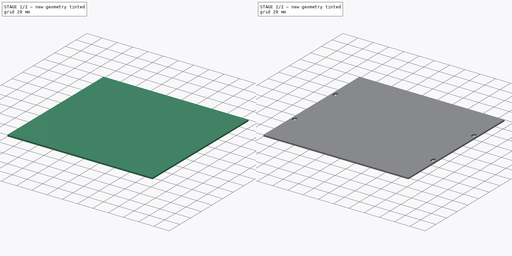
[diagram: build sequence overview — one tinted view per stage of 2, left to right]
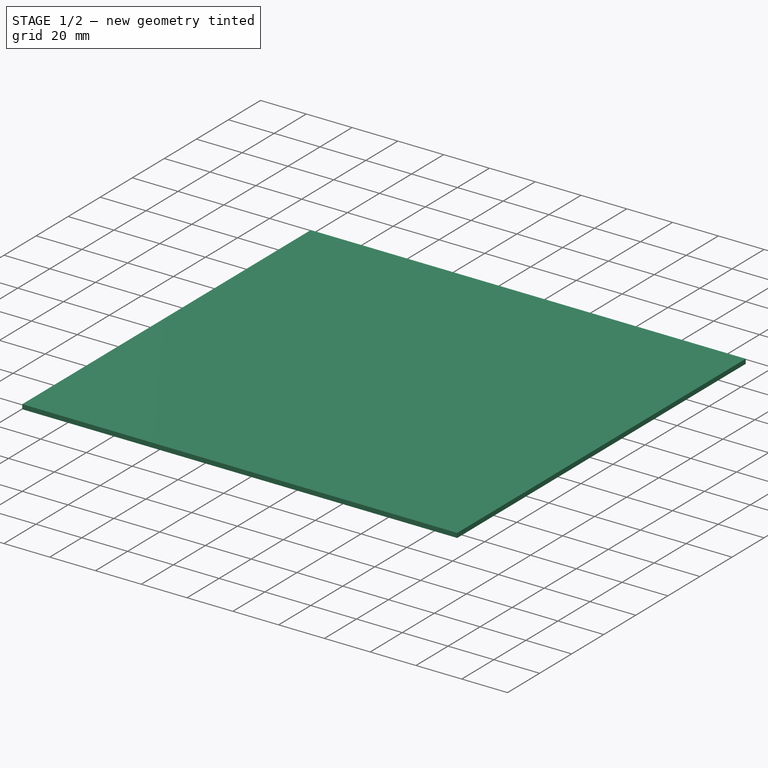
[diagram: stage 1 of 2 — iso view after this stage's code; geometry added in this stage tinted green]
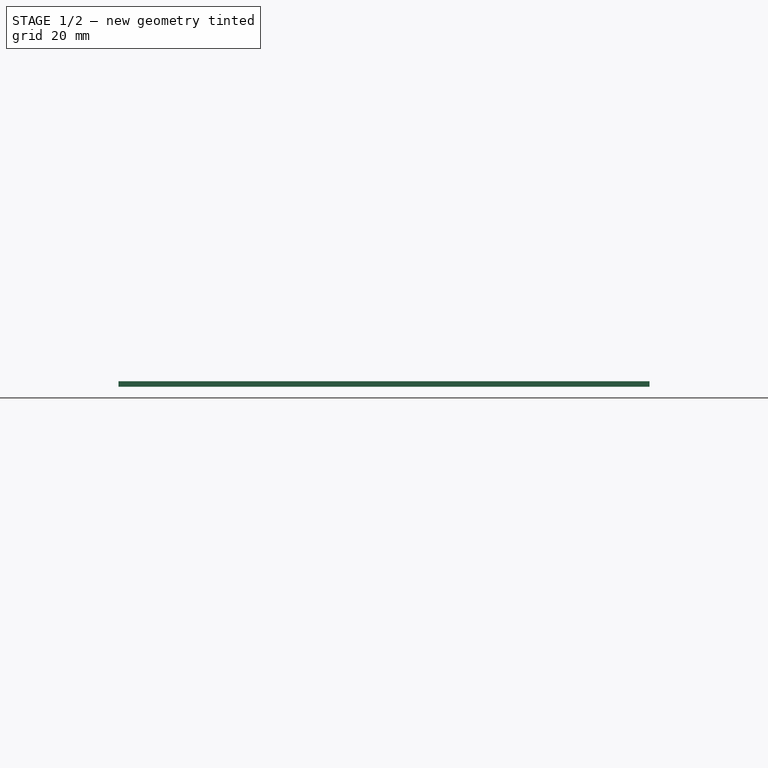
[diagram: stage 1 of 2 — front view after this stage's code; geometry added in this stage tinted green]
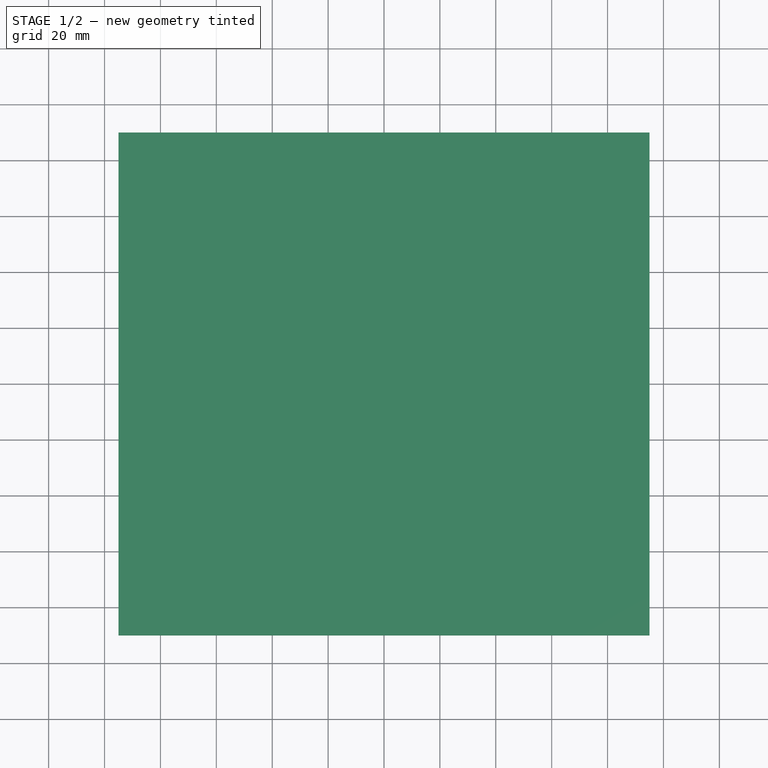
[diagram: stage 1 of 2 — top view after this stage's code; geometry added in this stage tinted green]
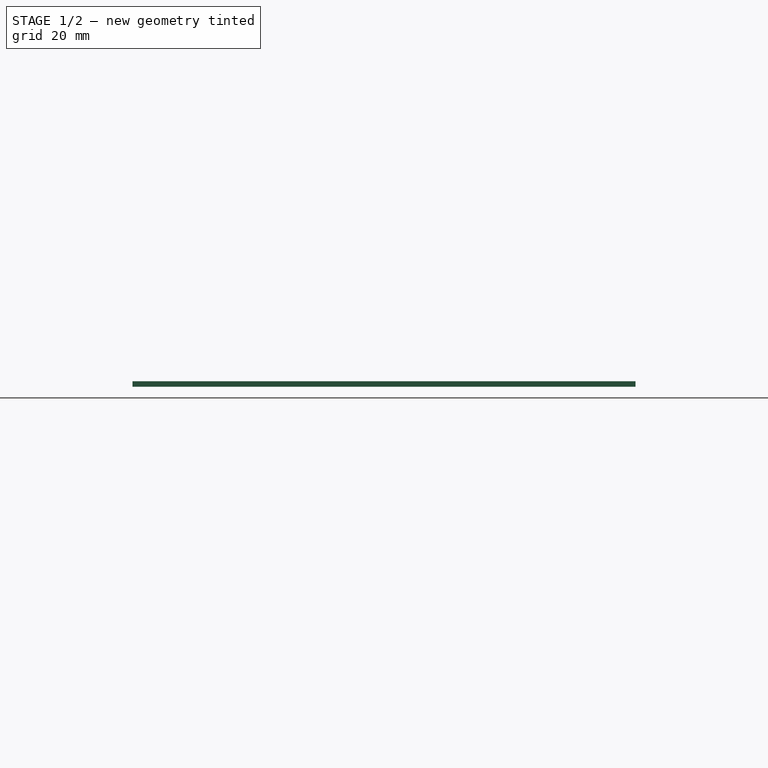
[diagram: stage 1 of 2 — right view after this stage's code; geometry added in this stage tinted green]
FCSTD DOCUMENT  (FreeCAD 0.19R)
Label: tapa
License: All rights reserved
LicenseURL: http://en.wikipedia.org/wiki/All_rights_reserved
objects: Sketcher::SketchObject×2, PartDesign::Pad×1, PartDesign::Pocket×1, PartDesign::Body×1
note: 7 computed .brp shape members not serialized (recipe doc carries the construction recipe); baked Part::Feature solids carry a one-line shape summary decoded from their .brp

FEATURE [Sketcher::SketchObject] Sketch
  FullyConstrained = true
  MapMode = 5
  Support = -> [XY_Plane]
  sketch-geometry (6):
    g0: LineSegment StartX=-95 StartY=-90 StartZ=0 EndX=95 EndY=-90 EndZ=0
    g1: LineSegment StartX=95 StartY=-90 StartZ=0 EndX=95 EndY=90 EndZ=0
    g2: LineSegment StartX=95 StartY=90 StartZ=0 EndX=-95 EndY=90 EndZ=0
    g3: LineSegment StartX=-95 StartY=90 StartZ=0 EndX=-95 EndY=-90 EndZ=0
    g4: LineSegment StartX=0 StartY=0 StartZ=0 EndX=-95 EndY=-90 EndZ=0
    g5: LineSegment StartX=0 StartY=0 StartZ=0 EndX=95 EndY=90 EndZ=0
  constraints (16):
    c: Coincident(g0,g1)
    c: Coincident(g1,g2)
    c: Coincident(g2,g3)
    c: Coincident(g3,g0)
    c: Horizontal(g0)
    c: Horizontal(g2)
    c: Vertical(g1)
    c: Vertical(g3)
    c: Coincident(g4,g-1)
    c: Coincident(g4,g0)
    c: Coincident(g5,g-1)
    c: Coincident(g5,g1)
    c: Equal(g5,g4)
    c: Parallel(g4,g5)
    c: DistanceY(g3,g3) = 180
    c: DistanceX(g0,g0) = 190
FEATURE [PartDesign::Pad] Pad
  Direction = (1,1,1)
  Length = 2
  Length2 = 100
  Profile = -> Sketch
  Refine = true
  Type = 0
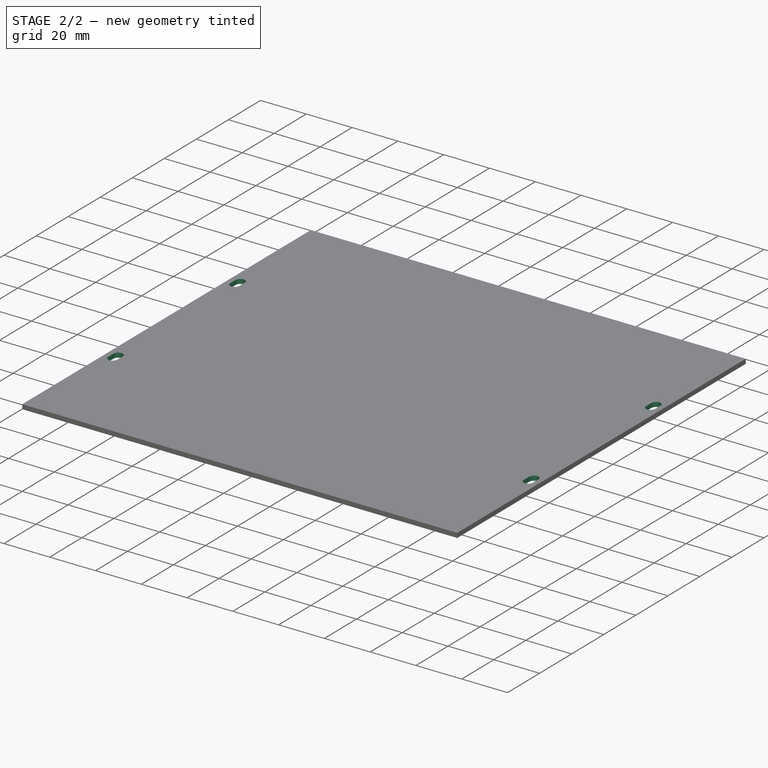
[diagram: stage 2 of 2 — iso view after this stage's code; geometry added in this stage tinted green]
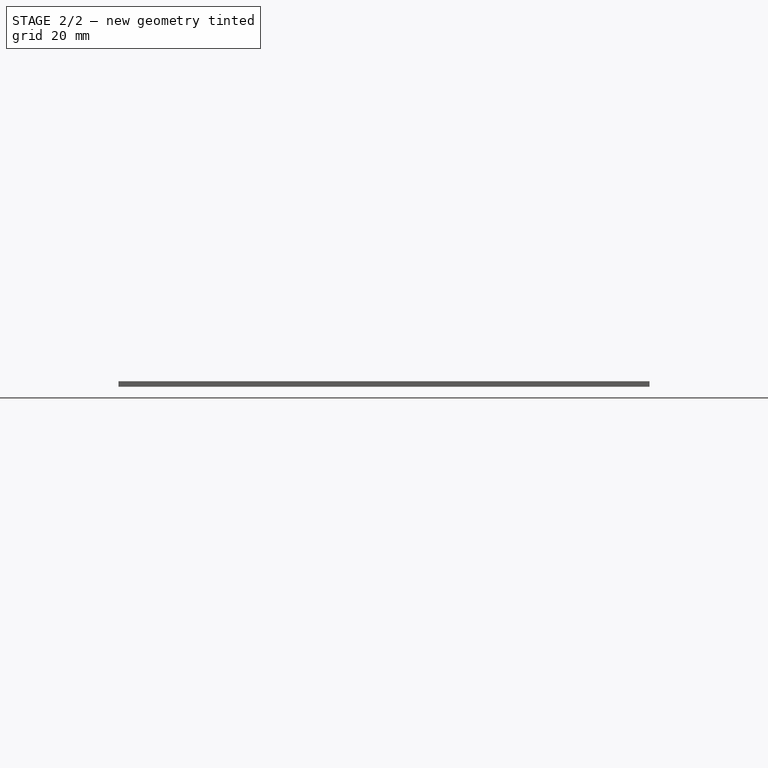
[diagram: stage 2 of 2 — front view after this stage's code; geometry added in this stage tinted green]
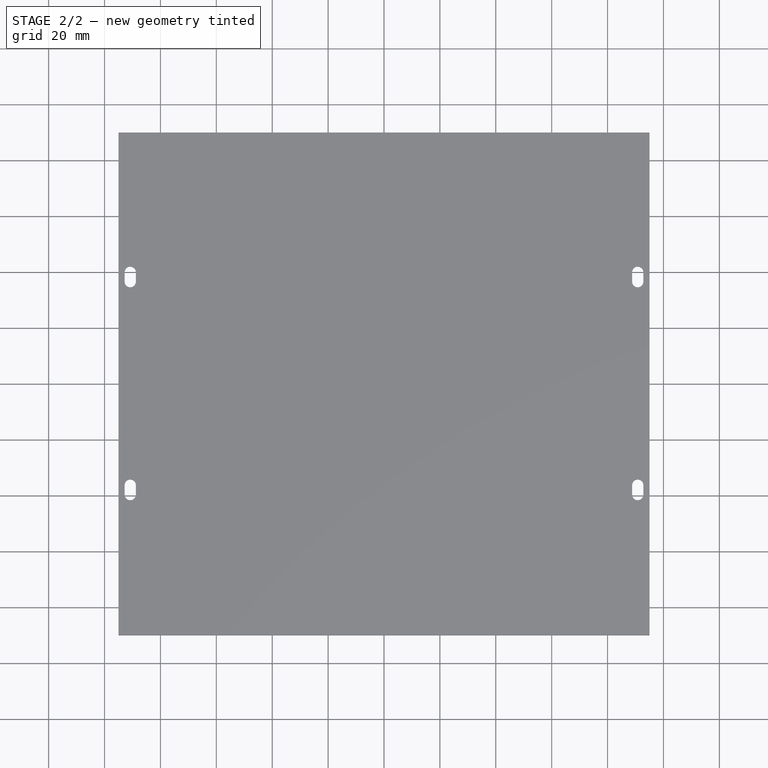
[diagram: stage 2 of 2 — top view after this stage's code; geometry added in this stage tinted green]
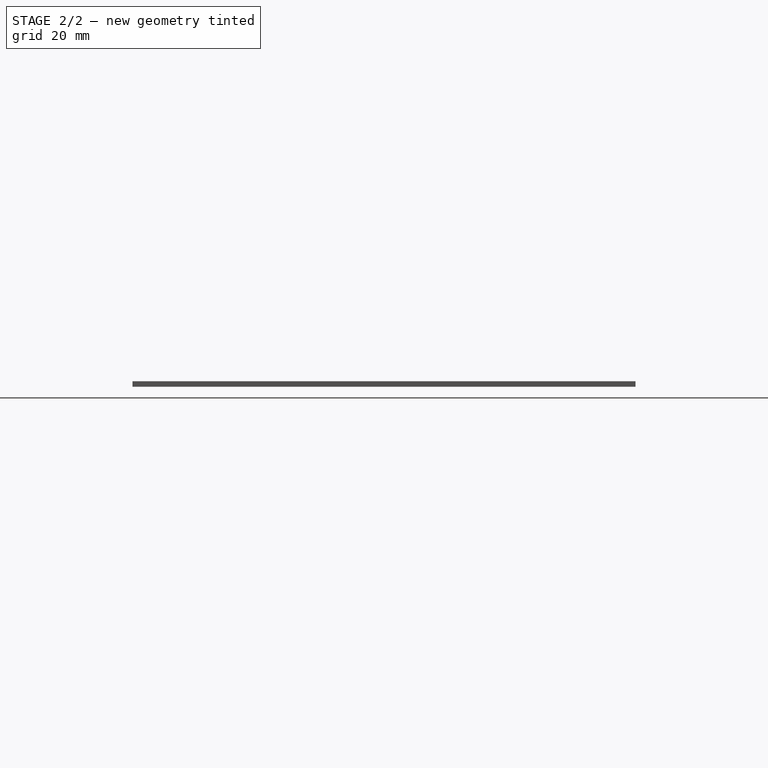
[diagram: stage 2 of 2 — right view after this stage's code; geometry added in this stage tinted green]
FEATURE [Sketcher::SketchObject] Sketch001
  ExternalGeometry = -> [Pad]
  FullyConstrained = false
  MapMode = 5
  Placement = pos=(0,0,2) rot=(0,0,1;0rad)
  Support = -> [Pad]
  sketch-geometry (28):
    g0: ArcOfCircle CenterX=-90.8 CenterY=40 CenterZ=0 NormalX=0 NormalY=0 NormalZ=1 AngleXU=0 Radius=2 StartAngle=1e-16 EndAngle=3.14159
    g1: ArcOfCircle CenterX=-90.8 CenterY=36.6 CenterZ=0 NormalX=0 NormalY=0 NormalZ=1 AngleXU=0 Radius=2 StartAngle=3.14159 EndAngle=6.28319
    g2: LineSegment StartX=-92.8 StartY=40 StartZ=0 EndX=-92.8 EndY=36.6 EndZ=0
    g3: LineSegment StartX=-88.8 StartY=40 StartZ=0 EndX=-88.8 EndY=36.6 EndZ=0
    g4: ArcOfCircle CenterX=90.8 CenterY=40 CenterZ=0 NormalX=0 NormalY=0 NormalZ=1 AngleXU=0 Radius=2 StartAngle=0 EndAngle=3.14159
    g5: ArcOfCircle CenterX=90.8 CenterY=36.6 CenterZ=0 NormalX=0 NormalY=0 NormalZ=1 AngleXU=0 Radius=2 StartAngle=3.14159 EndAngle=6.28319
    g6: LineSegment StartX=88.8 StartY=40 StartZ=0 EndX=88.8 EndY=36.6 EndZ=0
    g7: LineSegment StartX=92.8 StartY=40 StartZ=0 EndX=92.8 EndY=36.6 EndZ=0
    g8: ArcOfCircle CenterX=-90.8 CenterY=-36.2 CenterZ=0 NormalX=0 NormalY=0 NormalZ=1 AngleXU=0 Radius=2 StartAngle=-2.7e-15 EndAngle=3.14159
    g9: ArcOfCircle CenterX=-90.8 CenterY=-39.6 CenterZ=0 NormalX=0 NormalY=0 NormalZ=1 AngleXU=0 Radius=2 StartAngle=3.14159 EndAngle=6.28319
    g10: LineSegment StartX=-92.8 StartY=-36.2 StartZ=0 EndX=-92.8 EndY=-39.6 EndZ=0
    g11: LineSegment StartX=-88.8 StartY=-36.2 StartZ=0 EndX=-88.8 EndY=-39.6 EndZ=0
    g12: ArcOfCircle CenterX=90.8 CenterY=-36.2 CenterZ=0 NormalX=0 NormalY=0 NormalZ=1 AngleXU=0 Radius=2 StartAngle=-3.6e-15 EndAngle=3.14159
    g13: ArcOfCircle CenterX=90.8 CenterY=-39.6 CenterZ=0 NormalX=0 NormalY=0 NormalZ=1 AngleXU=0 Radius=2 StartAngle=3.14159 EndAngle=6.28319
    g14: LineSegment StartX=88.8 StartY=-36.2 StartZ=0 EndX=88.8 EndY=-39.6 EndZ=0
    g15: LineSegment StartX=92.8 StartY=-36.2 StartZ=0 EndX=92.8 EndY=-39.6 EndZ=0
    g16: LineSegment StartX=-92.8 StartY=-79.4646 StartZ=0 EndX=-88.8 EndY=-79.4646 EndZ=0
    g17: LineSegment StartX=88.8 StartY=-64.9414 StartZ=0 EndX=92.8 EndY=-64.9414 EndZ=0
    g18: LineSegment StartX=88.8 StartY=75.9791 StartZ=0 EndX=92.8 EndY=75.9791 EndZ=0
    g19: LineSegment StartX=-92.8 StartY=107.517 StartZ=0 EndX=-88.8 EndY=107.517 EndZ=0
    g20: LineSegment StartX=-90.8 StartY=40 StartZ=0 EndX=-90.8 EndY=90 EndZ=0
    g21: LineSegment StartX=-92.8 StartY=71.5196 StartZ=0 EndX=-95 EndY=71.5196 EndZ=0
    g22: LineSegment StartX=-90.8 StartY=36.6 StartZ=0 EndX=-90.8 EndY=-36.2 EndZ=0
    g23: LineSegment StartX=-92.8 StartY=-70.5653 StartZ=0 EndX=-95 EndY=-70.5653 EndZ=0
    g24: LineSegment StartX=90.8 StartY=40 StartZ=0 EndX=90.8 EndY=90 EndZ=0
    g25: LineSegment StartX=92.8 StartY=69.5489 StartZ=0 EndX=95 EndY=69.5489 EndZ=0
    g26: LineSegment StartX=90.8 StartY=36.6 StartZ=0 EndX=90.8 EndY=-36.2 EndZ=0
    g27: LineSegment StartX=92.8 StartY=-68.3183 StartZ=0 EndX=95 EndY=-68.3183 EndZ=0
  constraints (77):
    c: DistanceY(g-5,g-5) = 180
    c: DistanceY(g-4,g-4) = 0
    c: DistanceX(g-6,g-6) = 190
    c: Tangent(g0,g3) = 1.5708
    c: Tangent(g0,g2) = -1.5708
    c: Tangent(g2,g1) = -1.5708
    c: Tangent(g3,g1) = 1.5708
    c: Vertical(g2)
    c: Equal(g0,g1)
    c: Tangent(g4,g7) = 1.5708
    c: Tangent(g4,g6) = -1.5708
    c: Tangent(g6,g5) = -1.5708
    c: Tangent(g7,g5) = 1.5708
    c: Vertical(g6)
    c: Equal(g4,g5)
    c: Tangent(g8,g11) = 1.5708
    c: Tangent(g8,g10) = -1.5708
    c: Tangent(g10,g9) = -1.5708
    c: Tangent(g11,g9) = 1.5708
    c: Vertical(g10)
    c: Equal(g8,g9)
    c: Tangent(g12,g15) = 1.5708
    c: Tangent(g12,g14) = -1.5708
    c: Tangent(g14,g13) = -1.5708
    c: Tangent(g15,g13) = 1.5708
    c: Vertical(g14)
    c: Equal(g12,g13)
    c: PointOnObject(g16,g10)
    c: PointOnObject(g16,g11)
    c: Horizontal(g16)
    c: PointOnObject(g17,g14)
    c: PointOnObject(g17,g15)
    c: Horizontal(g17)
    c: PointOnObject(g18,g6)
    c: PointOnObject(g18,g7)
    c: Horizontal(g18)
    c: PointOnObject(g19,g2)
    c: PointOnObject(g19,g3)
    c: Horizontal(g19)
    c: DistanceX(g19,g19) = 4
    c: DistanceX(g16,g16) = 4
    c: DistanceX(g17,g17) = 4
    c: DistanceX(g18,g18) = 4
    c: DistanceY(g7,g7) = 3.4
    c: DistanceY(g3,g3) = 3.4
    c: DistanceY(g11,g11) = 3.4
    c: DistanceY(g14,g14) = 3.4
    c: Coincident(g20,g0)
    c: PointOnObject(g20,g-4)
    c: Vertical(g20)
    c: PointOnObject(g21,g2)
    c: PointOnObject(g21,g-3)
    c: Horizontal(g21)
    c: Coincident(g22,g1)
    c: Coincident(g22,g8)
    c: Vertical(g22)
    c: PointOnObject(g23,g10)
    c: PointOnObject(g23,g-3)
    c: Horizontal(g23)
    c: DistanceY(g20,g20) = 50
    c: DistanceY(g22,g22) = 72.8
    c: DistanceX(g21,g21) = 2.2
    c: Coincident(g24,g4)
    c: PointOnObject(g24,g-4)
    c: Vertical(g24)
    c: PointOnObject(g25,g7)
    c: PointOnObject(g25,g-5)
    c: Horizontal(g25)
    c: Coincident(g26,g5)
    c: Coincident(g26,g12)
    c: PointOnObject(g27,g15)
    c: PointOnObject(g27,g-5)
    c: Horizontal(g27)
    c: DistanceX(g27,g27) = 2.2
    c: DistanceX(g25,g25) = 2.2
    c: DistanceY(g24,g24) = 50
    c: DistanceY(g26,g26) = 72.8
FEATURE [PartDesign::Pocket] Pocket
  BaseFeature = -> Pad
  Length = 5
  Length2 = 100
  Profile = -> Sketch001
  Refine = true
  Type = 0
FEATURE [PartDesign::Body] Body
  Group = -> [Sketch,Pad,Sketch001,Pocket]
  Origin = -> Origin
  Tip = -> Pocket
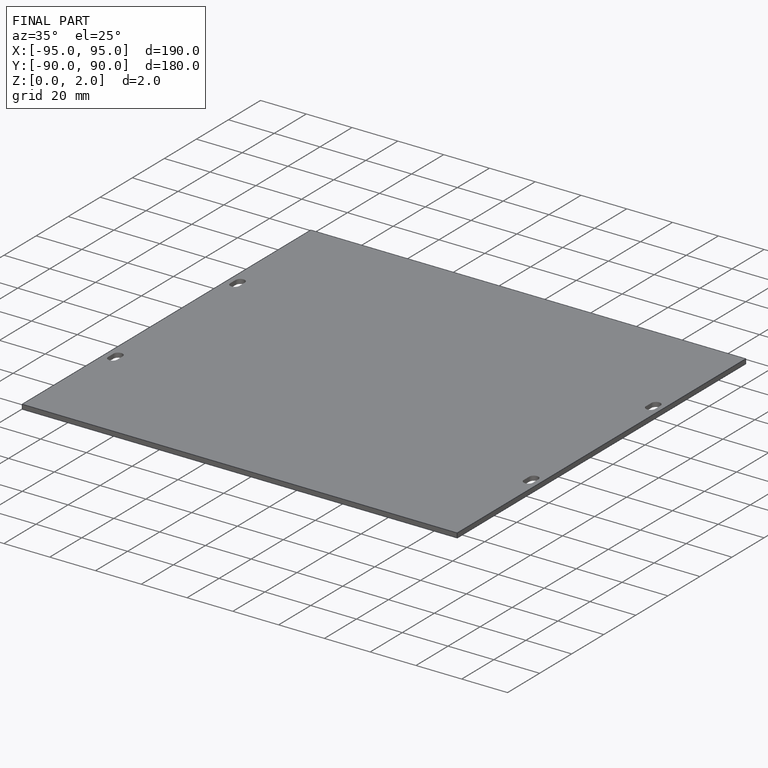
[diagram: finished part — iso view with bounding-box wireframe]
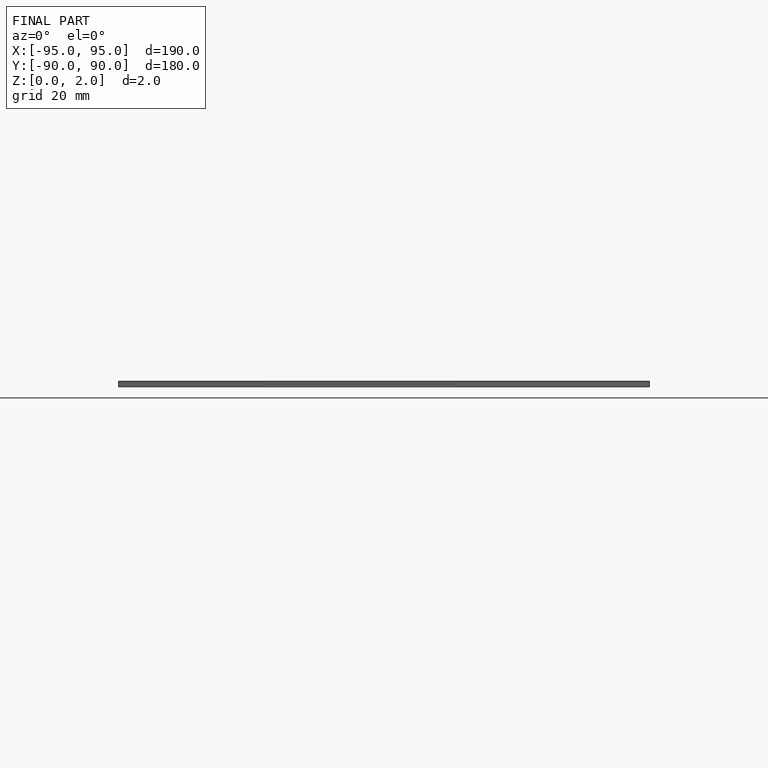
[diagram: finished part — front view with bounding-box wireframe]
